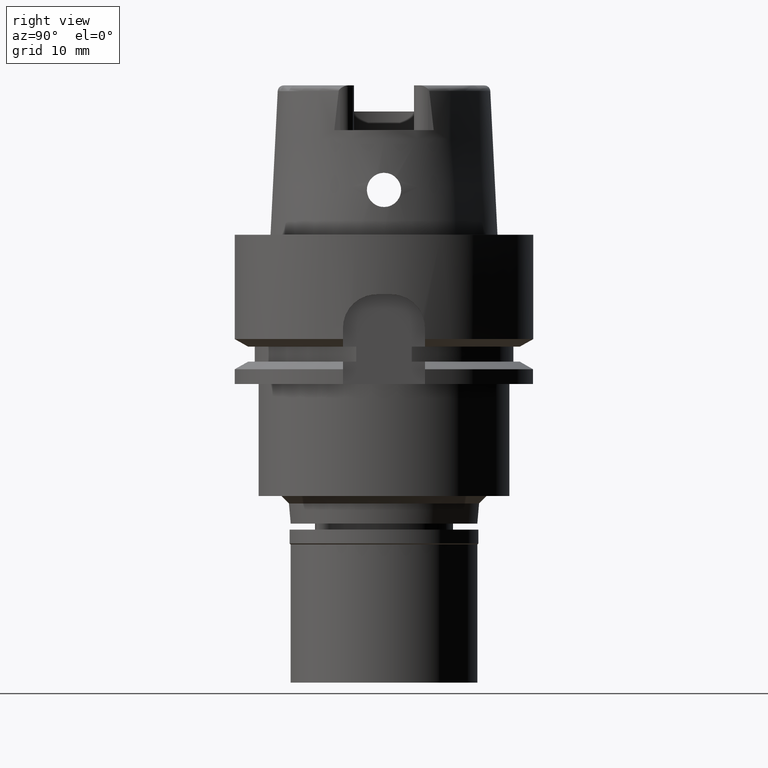
[diagram: clean part render]
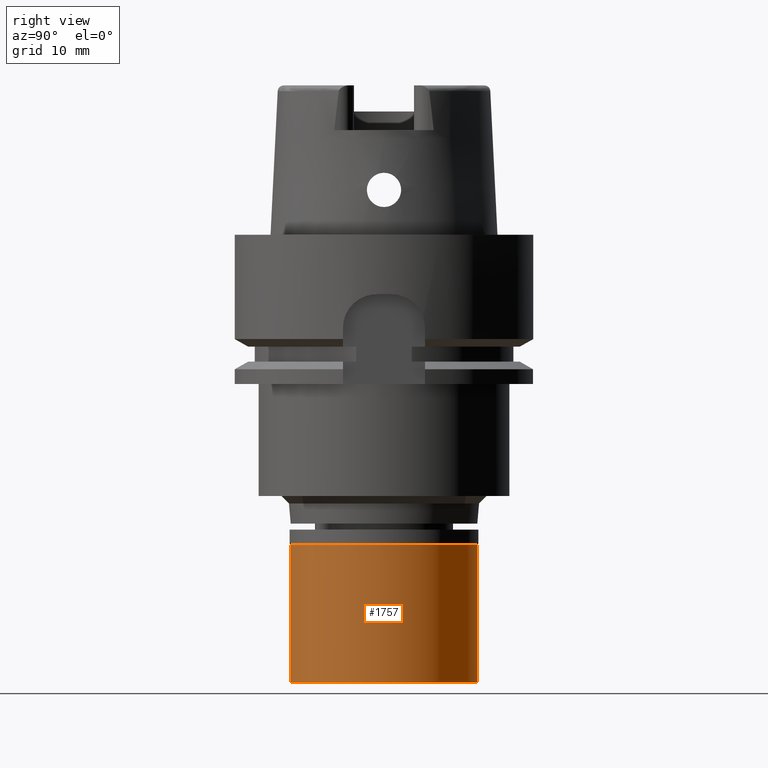
[diagram: same view with one face highlighted and labeled with its STEP entity id]
A machine part, right view. The second image highlights one B-rep face of the part: STEP entity #1757.
In plain terms, the highlighted cylindrical surface (partial cylindrical patch) has radius 12.5 mm, axis along (0, 0, -1).
Its self-contained STEP definition (entity closure, byte-faithful):
#8 = DIRECTION ( 'NONE',  ( 0.0000000000000000000, 1.000000000000000000, 0.0000000000000000000 ) ) ;
#107 = CARTESIAN_POINT ( 'NONE',  ( 0.0000000000000000000, 12.50000000000000000, -2.000000000000000000 ) ) ;
#272 = DIRECTION ( 'NONE',  ( 0.0000000000000000000, 0.0000000000000000000, 1.000000000000000000 ) ) ;
#454 = ORIENTED_EDGE ( 'NONE', *, *, #4034, .F. ) ;
#470 = CIRCLE ( 'NONE', #3424, 12.50000000000000000 ) ;
#757 = LINE ( 'NONE', #5403, #1881 ) ;
#827 = AXIS2_PLACEMENT_3D ( 'NONE', #1495, #1841, #3203 ) ;
#954 = ORIENTED_EDGE ( 'NONE', *, *, #2291, .T. ) ;
#1020 = EDGE_LOOP ( 'NONE', ( #2216, #5110, #954, #454 ) ) ;
#1098 = VERTEX_POINT ( 'NONE', #107 ) ;
#1386 = CARTESIAN_POINT ( 'NONE',  ( 0.0000000000000000000, 0.0000000000000000000, -2.000000000000000000 ) ) ;
#1422 = CARTESIAN_POINT ( 'NONE',  ( 0.0000000000000000000, -12.50000000000000000, -2.000000000000000000 ) ) ;
#1485 = EDGE_CURVE ( 'NONE', #1098, #3792, #470, .T. ) ;
#1495 = CARTESIAN_POINT ( 'NONE',  ( 0.0000000000000000000, 0.0000000000000000000, 0.0000000000000000000 ) ) ;
#1547 = VERTEX_POINT ( 'NONE', #4252 ) ;
#1610 = VECTOR ( 'NONE', #3854, 1000.000000000000000 ) ;
#1726 = LINE ( 'NONE', #3435, #1610 ) ;
#1757 = ADVANCED_FACE ( 'NONE', ( #3622 ), #5323, .T. ) ;
#1841 = DIRECTION ( 'NONE',  ( 0.0000000000000000000, 0.0000000000000000000, -1.000000000000000000 ) ) ;
#1881 = VECTOR ( 'NONE', #4651, 1000.000000000000000 ) ;
#2216 = ORIENTED_EDGE ( 'NONE', *, *, #1485, .T. ) ;
#2236 = CIRCLE ( 'NONE', #3027, 12.50000000000000000 ) ;
#2291 = EDGE_CURVE ( 'NONE', #2974, #1547, #2236, .T. ) ;
#2399 = CARTESIAN_POINT ( 'NONE',  ( 0.0000000000000000000, 0.0000000000000000000, -20.50000000000000000 ) ) ;
#2974 = VERTEX_POINT ( 'NONE', #3153 ) ;
#3027 = AXIS2_PLACEMENT_3D ( 'NONE', #2399, #272, #4947 ) ;
#3108 = EDGE_CURVE ( 'NONE', #3792, #2974, #757, .T. ) ;
#3153 = CARTESIAN_POINT ( 'NONE',  ( 0.0000000000000000000, -12.50000000000000000, -20.50000000000000000 ) ) ;
#3203 = DIRECTION ( 'NONE',  ( 0.0000000000000000000, -1.000000000000000000, 0.0000000000000000000 ) ) ;
#3424 = AXIS2_PLACEMENT_3D ( 'NONE', #1386, #4742, #8 ) ;
#3435 = CARTESIAN_POINT ( 'NONE',  ( 0.0000000000000000000, 12.50000000000000000, -2.000000000000000000 ) ) ;
#3622 = FACE_OUTER_BOUND ( 'NONE', #1020, .T. ) ;
#3792 = VERTEX_POINT ( 'NONE', #1422 ) ;
#3854 = DIRECTION ( 'NONE',  ( 0.0000000000000000000, 0.0000000000000000000, -1.000000000000000000 ) ) ;
#4034 = EDGE_CURVE ( 'NONE', #1098, #1547, #1726, .T. ) ;
#4252 = CARTESIAN_POINT ( 'NONE',  ( 0.0000000000000000000, 12.50000000000000000, -20.50000000000000000 ) ) ;
#4651 = DIRECTION ( 'NONE',  ( 0.0000000000000000000, 0.0000000000000000000, -1.000000000000000000 ) ) ;
#4742 = DIRECTION ( 'NONE',  ( 0.0000000000000000000, 0.0000000000000000000, -1.000000000000000000 ) ) ;
#4947 = DIRECTION ( 'NONE',  ( 0.0000000000000000000, -1.000000000000000000, 0.0000000000000000000 ) ) ;
#5110 = ORIENTED_EDGE ( 'NONE', *, *, #3108, .T. ) ;
#5323 = CYLINDRICAL_SURFACE ( 'NONE', #827, 12.50000000000000000 ) ;
#5403 = CARTESIAN_POINT ( 'NONE',  ( 0.0000000000000000000, -12.50000000000000000, -2.000000000000000000 ) ) ;